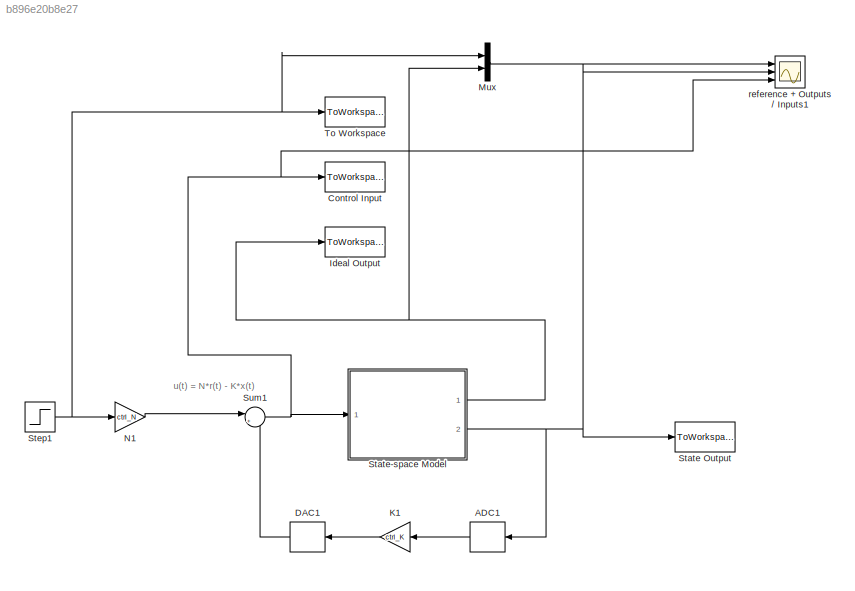
MODEL slx_b896e20b8e27
KIND model
CONFIG AbsTol = auto
CONFIG FixedStep = auto
CONFIG MaxStep = auto
CONFIG MinStep = auto
CONFIG RelTol = 1e-3
CONFIG SampleTimeConstraint = Unconstrained
CONFIG Solver = ode45
CONFIG SolverMode = SingleTasking
CONFIG SolverName = ode45
CONFIG StartTime = 0.0
CONFIG StopTime = simu.time
BLOCK [ZeroOrderHold] ADC1
  SampleTime = g_Ts
BLOCK [ToWorkspace] Control Input
  MaxDataPoints = Inf
  Ports = [1]
  SampleTime = simu.samlping_time
  VariableName = u
BLOCK [ZeroOrderHold] DAC1
  SampleTime = g_Ts
BLOCK [ToWorkspace] Ideal Output
  MaxDataPoints = Inf
  Ports = [1]
  SampleTime = simu.samlping_time
  VariableName = y
BLOCK [Gain] K1
  Gain = ctrl_K
  Multiplication = Matrix(K*u)
  OutDataTypeStr = Inherit: Inherit via internal rule
  ParamDataTypeStr = Inherit: Inherit via internal rule
  SaturateOnIntegerOverflow = off
BLOCK [Mux] Mux
  DisplayOption = bar
  Inputs = 2
  Ports = [2, 1]
BLOCK [Gain] N1
  Gain = ctrl_N
  OutDataTypeStr = Inherit: Inherit via internal rule
  ParamDataTypeStr = Inherit: Inherit via internal rule
  SaturateOnIntegerOverflow = off
BLOCK [ToWorkspace] State Output
  MaxDataPoints = Inf
  Ports = [1]
  SampleTime = simu.samlping_time
  VariableName = x
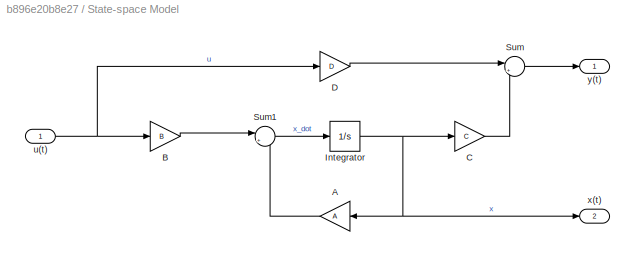
BLOCK [SubSystem] State-space Model
  Ports = [1, 2]
  RequestExecContextInheritance = off
BLOCK [Gain] State-space Model/A
  Gain = A
  Multiplication = Matrix(K*u)
  OutDataTypeStr = Inherit: Inherit via internal rule
  ParamDataTypeStr = Inherit: Inherit via internal rule
  SaturateOnIntegerOverflow = off
BLOCK [Gain] State-space Model/B
  Gain = B
  Multiplication = Matrix(K*u)
  OutDataTypeStr = Inherit: Inherit via internal rule
  ParamDataTypeStr = Inherit: Inherit via internal rule
  SaturateOnIntegerOverflow = off
BLOCK [Gain] State-space Model/C
  Gain = C
  Multiplication = Matrix(K*u)
  OutDataTypeStr = Inherit: Inherit via internal rule
  ParamDataTypeStr = Inherit: Inherit via internal rule
  SaturateOnIntegerOverflow = off
BLOCK [Gain] State-space Model/D
  Gain = D
  Multiplication = Matrix(K*u)
  OutDataTypeStr = Inherit: Inherit via internal rule
  ParamDataTypeStr = Inherit: Inherit via internal rule
  SaturateOnIntegerOverflow = off
BLOCK [Integrator] State-space Model/Integrator
  Ports = [1, 1]
BLOCK [Sum] State-space Model/Sum
  IconShape = round
  InputSameDT = off
  Inputs = |++
  OutDataTypeStr = Inherit: Inherit via internal rule
  Ports = [2, 1]
  SaturateOnIntegerOverflow = off
BLOCK [Sum] State-space Model/Sum1
  IconShape = round
  InputSameDT = off
  Inputs = |++
  OutDataTypeStr = Inherit: Inherit via internal rule
  Ports = [2, 1]
  SaturateOnIntegerOverflow = off
BLOCK [Inport] State-space Model/u(t)
  IconDisplay = Port number
BLOCK [Outport] State-space Model/x(t)
  IconDisplay = Port number
  Port = 2
BLOCK [Outport] State-space Model/y(t)
  IconDisplay = Port number
BLOCK [Step] Step1
  After = ref_mag
  SampleTime = 0
  Time = 0
BLOCK [Sum] Sum1
  IconShape = round
  InputSameDT = off
  Inputs = |+-
  OutDataTypeStr = Inherit: Inherit via internal rule
  Ports = [2, 1]
  SaturateOnIntegerOverflow = off
BLOCK [ToWorkspace] To Workspace
  FixptAsFi = on
  MaxDataPoints = inf
  Ports = [1]
  SampleTime = simu.samlping_time
  Save2DSignal = 3-D array (concatenate along third dimension)
  VariableName = ref
BLOCK [Scope] reference + Outputs // Inputs1
  DataFormat = Structure
  Floating = off
  LimitDataPoints = off
  NumInputPorts = 3
  Ports = [3]
  SampleInput = on
  SampleTime = simu.samlping_time
  SaveName = ScopeData1
  TimeRange = 1
  YMax = 3~200~5
  YMin = -0.25~-600~-5
  ZoomMode = xonly
ANNOTATION (root): u(t) = N*r(t) - K*x(t)
LINE ADC1:1 -> K1:1
LINE DAC1:1 -> Sum1:2
LINE K1:1 -> DAC1:1
LINE Mux:1 -> reference + Outputs // Inputs1:1
LINE N1:1 -> Sum1:1
LINE State-space Model/A:1 -> State-space Model/Sum1:2
LINE State-space Model/B:1 -> State-space Model/Sum1:1
LINE State-space Model/C:1 -> State-space Model/Sum:2
LINE State-space Model/D:1 -> State-space Model/Sum:1
NET State-space Model/Integrator:1 -> State-space Model/A:1, State-space Model/C:1, State-space Model/x(t):1
LINE State-space Model/Sum1:1 -> State-space Model/Integrator:1
LINE State-space Model/Sum:1 -> State-space Model/y(t):1
NET State-space Model/u(t):1 -> State-space Model/B:1, State-space Model/D:1
NET State-space Model:1 -> Ideal Output:1, Mux:2
NET State-space Model:2 -> ADC1:1, State Output:1, reference + Outputs // Inputs1:2
NET Step1:1 -> Mux:1, N1:1, To Workspace:1
NET Sum1:1 -> Control Input:1, State-space Model:1, reference + Outputs // Inputs1:3
note: NET lines group one-source signal fan-out (src -> all destinations, sorted); 1:1 wires keep LINE
